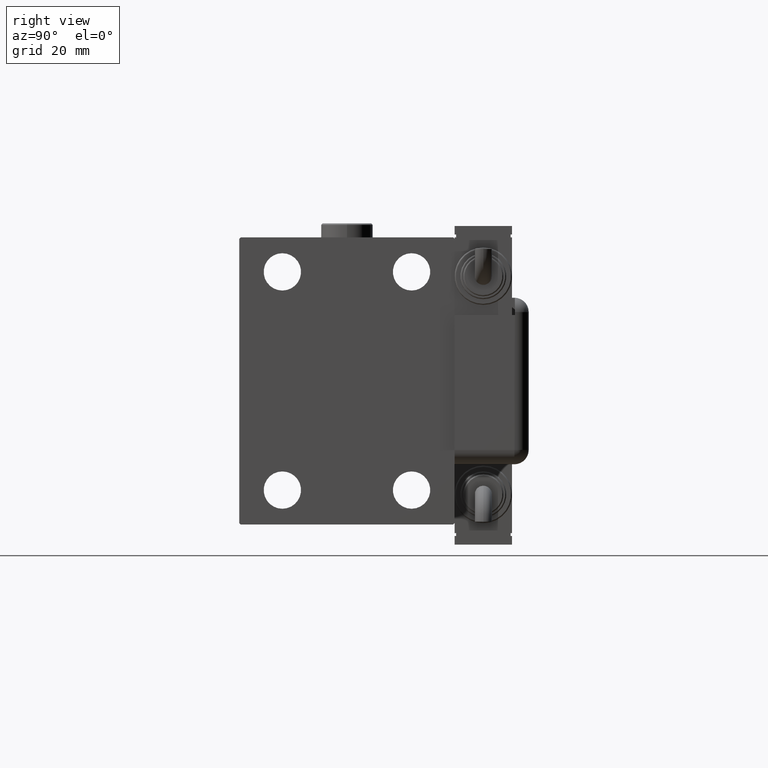
[diagram: clean part render]
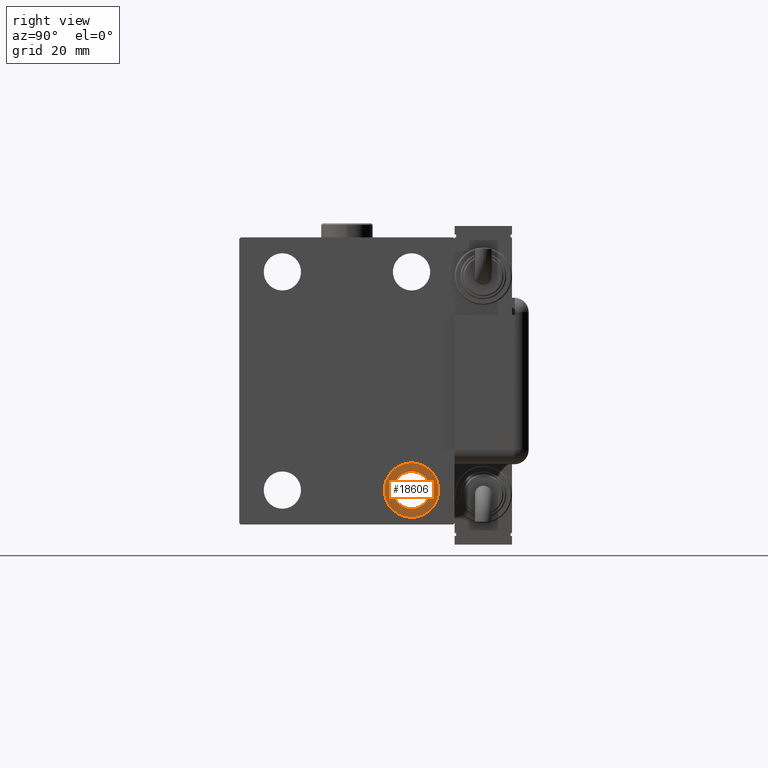
[diagram: same view with one face highlighted and labeled with its STEP entity id]
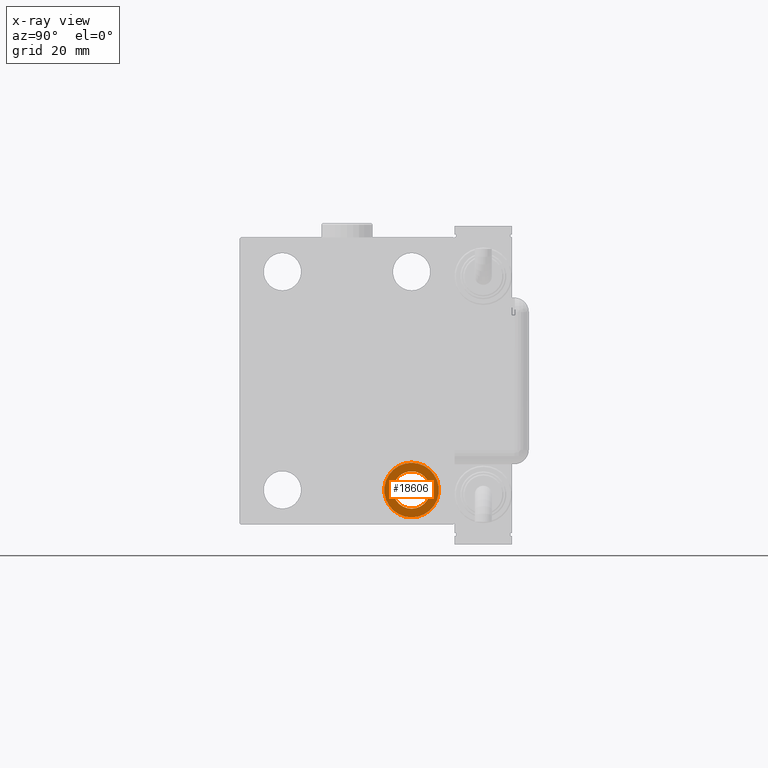
[diagram: x-ray of the same camera — body ghosted, the highlighted face saturated]
A machine part, right view. The second image highlights one B-rep face of the part: STEP entity #18606.
The next image is the same camera in x-ray: the body ghosted, the highlighted face saturated — about 0% of this face is hidden behind the body in this view.
In plain terms, the highlighted planar face has unit normal (1, 0, 0).
Its self-contained STEP definition (entity closure, byte-faithful):
#957 = DIRECTION ( 'NONE',  ( -1.000000000000000000, -0.000000000000000000, -0.000000000000000000 ) ) ;
#2999 = FACE_OUTER_BOUND ( 'NONE', #50640, .T. ) ;
#6927 = AXIS2_PLACEMENT_3D ( 'NONE', #30804, #35146, #54614 ) ;
#7440 = AXIS2_PLACEMENT_3D ( 'NONE', #50259, #22729, #27074 ) ;
#11861 = CIRCLE ( 'NONE', #26639, 9.500000000000001776 ) ;
#14238 = EDGE_LOOP ( 'NONE', ( #46883, #37720 ) ) ;
#17378 = CARTESIAN_POINT ( 'NONE',  ( 139.9999999999999716, 22.49999999999999645, -37.99999999999999289 ) ) ;
#18591 = CARTESIAN_POINT ( 'NONE',  ( 139.9999999999999716, 22.49999999999999645, -37.99999999999999289 ) ) ;
#18606 = ADVANCED_FACE ( 'NONE', ( #2999, #50566 ), #31407, .T. ) ;
#18865 = VERTEX_POINT ( 'NONE', #38392 ) ;
#19473 = ORIENTED_EDGE ( 'NONE', *, *, #30711, .F. ) ;
#19562 = EDGE_CURVE ( 'NONE', #52361, #18865, #57760, .T. ) ;
#19585 = VERTEX_POINT ( 'NONE', #26867 ) ;
#20573 = ORIENTED_EDGE ( 'NONE', *, *, #35480, .F. ) ;
#22266 = CARTESIAN_POINT ( 'NONE',  ( 139.9999999999999716, 22.49999999999999645, -28.49999999999998934 ) ) ;
#22729 = DIRECTION ( 'NONE',  ( 1.000000000000000000, 0.000000000000000000, -0.000000000000000000 ) ) ;
#22833 = CARTESIAN_POINT ( 'NONE',  ( 139.9999999999999716, 22.49999999999999645, -37.99999999999999289 ) ) ;
#23516 = DIRECTION ( 'NONE',  ( -1.000000000000000000, -0.000000000000000000, -0.000000000000000000 ) ) ;
#26639 = AXIS2_PLACEMENT_3D ( 'NONE', #18591, #23516, #38044 ) ;
#26867 = CARTESIAN_POINT ( 'NONE',  ( 139.9999999999999716, 22.49999999999999645, -47.49999999999999289 ) ) ;
#27074 = DIRECTION ( 'NONE',  ( 0.000000000000000000, 0.000000000000000000, 1.000000000000000000 ) ) ;
#30711 = EDGE_CURVE ( 'NONE', #36568, #19585, #11861, .T. ) ;
#30804 = CARTESIAN_POINT ( 'NONE',  ( 139.9999999999999716, 22.49999999999999645, -37.99999999999999289 ) ) ;
#31407 = PLANE ( 'NONE',  #7440 ) ;
#31835 = CARTESIAN_POINT ( 'NONE',  ( 139.9999999999999716, 22.49999999999999645, -31.49999999999999289 ) ) ;
#34728 = EDGE_CURVE ( 'NONE', #18865, #52361, #39477, .T. ) ;
#35146 = DIRECTION ( 'NONE',  ( -1.000000000000000000, -0.000000000000000000, -0.000000000000000000 ) ) ;
#35480 = EDGE_CURVE ( 'NONE', #19585, #36568, #35587, .T. ) ;
#35587 = CIRCLE ( 'NONE', #44468, 9.500000000000001776 ) ;
#36568 = VERTEX_POINT ( 'NONE', #22266 ) ;
#37720 = ORIENTED_EDGE ( 'NONE', *, *, #34728, .T. ) ;
#38044 = DIRECTION ( 'NONE',  ( 0.000000000000000000, 0.000000000000000000, 1.000000000000000000 ) ) ;
#38392 = CARTESIAN_POINT ( 'NONE',  ( 139.9999999999999716, 22.49999999999999645, -44.49999999999999289 ) ) ;
#39477 = CIRCLE ( 'NONE', #6927, 6.499999999999999112 ) ;
#41712 = DIRECTION ( 'NONE',  ( -1.000000000000000000, -0.000000000000000000, -0.000000000000000000 ) ) ;
#44468 = AXIS2_PLACEMENT_3D ( 'NONE', #17378, #957, #47920 ) ;
#46883 = ORIENTED_EDGE ( 'NONE', *, *, #19562, .T. ) ;
#47920 = DIRECTION ( 'NONE',  ( 0.000000000000000000, 0.000000000000000000, 1.000000000000000000 ) ) ;
#50064 = DIRECTION ( 'NONE',  ( 0.000000000000000000, 0.000000000000000000, -1.000000000000000000 ) ) ;
#50259 = CARTESIAN_POINT ( 'NONE',  ( 139.9999999999999716, 22.49999999999999645, -37.99999999999999289 ) ) ;
#50566 = FACE_BOUND ( 'NONE', #14238, .T. ) ;
#50640 = EDGE_LOOP ( 'NONE', ( #20573, #19473 ) ) ;
#52361 = VERTEX_POINT ( 'NONE', #31835 ) ;
#54614 = DIRECTION ( 'NONE',  ( 0.000000000000000000, 0.000000000000000000, -1.000000000000000000 ) ) ;
#55827 = AXIS2_PLACEMENT_3D ( 'NONE', #22833, #41712, #50064 ) ;
#57760 = CIRCLE ( 'NONE', #55827, 6.499999999999999112 ) ;